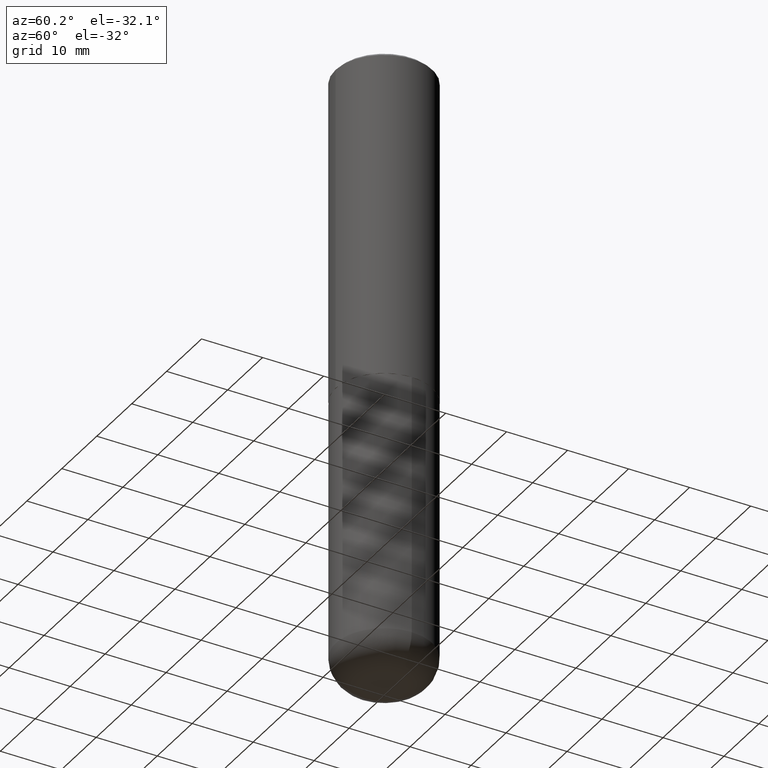
[diagram: clean part render]
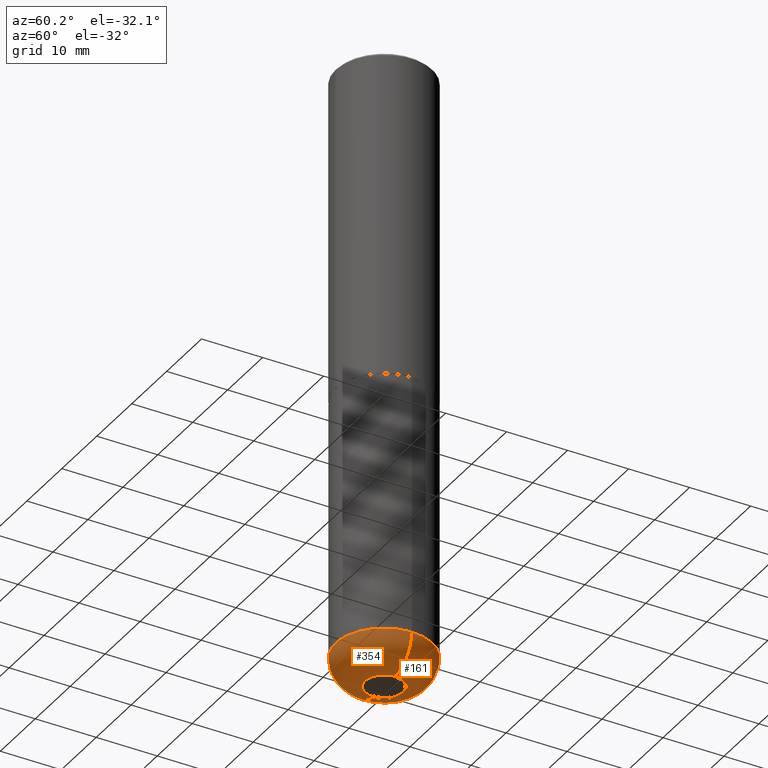
[diagram: same view with one multi-face feature highlighted, each face labeled with its STEP entity id]
A machine part, auxiliary view. The highlighted faces form ONE feature: a constant-radius fillet chain: 2 tangent blend faces with common blend radius 4.826 mm. The faces share edges in the B-rep.
Their STEP definitions:
[1] entity #161 (Torus):
#21 = CARTESIAN_POINT ( 'NONE',  ( -0.1225000000000000255, -1.243212904968626105E-14, -3.810000000000000053 ) ) ;
#22 = CARTESIAN_POINT ( 'NONE',  ( 0.1225000000000000394, -1.482133828338914748E-14, -3.999999999999999556 ) ) ;
#42 = CARTESIAN_POINT ( 'NONE',  ( -0.1225000000000000394, -1.208880417790426594E-14, -3.999999999999999556 ) ) ;
#43 = VERTEX_POINT ( 'NONE', #110 ) ;
#54 = DIRECTION ( 'NONE',  ( 1.000000000000000000, -6.982962677686263555E-15, 0.000000000000000000 ) ) ;
#62 = AXIS2_PLACEMENT_3D ( 'NONE', #109, #76, #270 ) ;
#64 = EDGE_CURVE ( 'NONE', #192, #304, #165, .T. ) ;
#71 = CARTESIAN_POINT ( 'NONE',  ( 9.317236151565370389E-29, -1.330254390099238573E-14, -3.810000000000000053 ) ) ;
#76 = DIRECTION ( 'NONE',  ( -2.445468806185136597E-29, 3.491481338843145583E-15, 1.000000000000000000 ) ) ;
#88 = EDGE_CURVE ( 'NONE', #43, #304, #294, .T. ) ;
#93 = AXIS2_PLACEMENT_3D ( 'NONE', #71, #334, #310 ) ;
#109 = CARTESIAN_POINT ( 'NONE',  ( 9.317236151565370389E-29, -1.330254390099238573E-14, -3.810000000000000053 ) ) ;
#110 = CARTESIAN_POINT ( 'NONE',  ( 0.3124999999999998890, -1.548471973776934408E-14, -3.810000000000000053 ) ) ;
#127 = AXIS2_PLACEMENT_3D ( 'NONE', #403, #376, #344 ) ;
#128 = ORIENTED_EDGE ( 'NONE', *, *, #64, .T. ) ;
#159 = CIRCLE ( 'NONE', #127, 0.1899999999999997247 ) ;
#161 = ADVANCED_FACE ( 'NONE', ( #200 ), #372, .T. ) ;
#165 = CIRCLE ( 'NONE', #247, 0.1899999999999997247 ) ;
#192 = VERTEX_POINT ( 'NONE', #42 ) ;
#194 = ORIENTED_EDGE ( 'NONE', *, *, #383, .F. ) ;
#200 = FACE_OUTER_BOUND ( 'NONE', #388, .T. ) ;
#225 = DIRECTION ( 'NONE',  ( -2.445468806185136597E-29, 3.491481338843145583E-15, 1.000000000000000000 ) ) ;
#235 = EDGE_CURVE ( 'NONE', #252, #192, #362, .T. ) ;
#247 = AXIS2_PLACEMENT_3D ( 'NONE', #21, #381, #385 ) ;
#252 = VERTEX_POINT ( 'NONE', #22 ) ;
#260 = ORIENTED_EDGE ( 'NONE', *, *, #235, .T. ) ;
#266 = AXIS2_PLACEMENT_3D ( 'NONE', #343, #225, #54 ) ;
#270 = DIRECTION ( 'NONE',  ( 1.000000000000000000, -6.982962677686269077E-15, 0.000000000000000000 ) ) ;
#294 = CIRCLE ( 'NONE', #62, 0.3125000000000000000 ) ;
#304 = VERTEX_POINT ( 'NONE', #375 ) ;
#310 = DIRECTION ( 'NONE',  ( 1.000000000000000000, -6.982962677686269077E-15, 4.883557194083113462E-29 ) ) ;
#334 = DIRECTION ( 'NONE',  ( -2.445468806185136597E-29, 3.491481338843145583E-15, 1.000000000000000000 ) ) ;
#343 = CARTESIAN_POINT ( 'NONE',  ( 9.781875224740545266E-29, -1.396592535537258075E-14, -3.999999999999999556 ) ) ;
#344 = DIRECTION ( 'NONE',  ( 1.000000000000000000, -6.982962677686261189E-15, 0.000000000000000000 ) ) ;
#362 = CIRCLE ( 'NONE', #266, 0.1225000000000000394 ) ;
#372 = TOROIDAL_SURFACE ( 'NONE', #93, 0.1225000000000000255, 0.1899999999999996692 ) ;
#375 = CARTESIAN_POINT ( 'NONE',  ( -0.3124999999999998890, -1.108209785174207265E-14, -3.810000000000000053 ) ) ;
#376 = DIRECTION ( 'NONE',  ( -6.982962677686266711E-15, -1.000000000000000000, 3.491481338843145583E-15 ) ) ;
#381 = DIRECTION ( 'NONE',  ( 7.105427357601001859E-15, 1.000000000000000000, -3.491481338843145583E-15 ) ) ;
#383 = EDGE_CURVE ( 'NONE', #252, #43, #159, .T. ) ;
#385 = DIRECTION ( 'NONE',  ( -1.000000000000000000, 7.105427357600997914E-15, 0.000000000000000000 ) ) ;
#388 = EDGE_LOOP ( 'NONE', ( #260, #128, #401, #194 ) ) ;
#401 = ORIENTED_EDGE ( 'NONE', *, *, #88, .F. ) ;
#403 = CARTESIAN_POINT ( 'NONE',  ( 0.1225000000000000255, -1.415795682900895246E-14, -3.810000000000000053 ) ) ;
[2] entity #354 (Torus):
#21 = CARTESIAN_POINT ( 'NONE',  ( -0.1225000000000000255, -1.243212904968626105E-14, -3.810000000000000053 ) ) ;
#22 = CARTESIAN_POINT ( 'NONE',  ( 0.1225000000000000394, -1.482133828338914748E-14, -3.999999999999999556 ) ) ;
#26 = DIRECTION ( 'NONE',  ( 1.000000000000000000, -6.982962677686263555E-15, 0.000000000000000000 ) ) ;
#42 = CARTESIAN_POINT ( 'NONE',  ( -0.1225000000000000394, -1.208880417790426594E-14, -3.999999999999999556 ) ) ;
#43 = VERTEX_POINT ( 'NONE', #110 ) ;
#64 = EDGE_CURVE ( 'NONE', #192, #304, #165, .T. ) ;
#75 = ORIENTED_EDGE ( 'NONE', *, *, #64, .F. ) ;
#80 = AXIS2_PLACEMENT_3D ( 'NONE', #217, #417, #329 ) ;
#91 = DIRECTION ( 'NONE',  ( 1.000000000000000000, -6.982962677686269077E-15, 4.883557194083113462E-29 ) ) ;
#108 = ORIENTED_EDGE ( 'NONE', *, *, #412, .F. ) ;
#110 = CARTESIAN_POINT ( 'NONE',  ( 0.3124999999999998890, -1.548471973776934408E-14, -3.810000000000000053 ) ) ;
#127 = AXIS2_PLACEMENT_3D ( 'NONE', #403, #376, #344 ) ;
#155 = FACE_OUTER_BOUND ( 'NONE', #179, .T. ) ;
#158 = DIRECTION ( 'NONE',  ( -2.445468806185136597E-29, 3.491481338843145583E-15, 1.000000000000000000 ) ) ;
#159 = CIRCLE ( 'NONE', #127, 0.1899999999999997247 ) ;
#165 = CIRCLE ( 'NONE', #247, 0.1899999999999997247 ) ;
#179 = EDGE_LOOP ( 'NONE', ( #75, #324, #206, #108 ) ) ;
#185 = DIRECTION ( 'NONE',  ( -2.445468806185136597E-29, 3.491481338843145583E-15, 1.000000000000000000 ) ) ;
#192 = VERTEX_POINT ( 'NONE', #42 ) ;
#196 = CIRCLE ( 'NONE', #357, 0.1225000000000000394 ) ;
#197 = CIRCLE ( 'NONE', #80, 0.3125000000000000000 ) ;
#206 = ORIENTED_EDGE ( 'NONE', *, *, #383, .T. ) ;
#217 = CARTESIAN_POINT ( 'NONE',  ( 9.317236151565370389E-29, -1.330254390099238573E-14, -3.810000000000000053 ) ) ;
#220 = TOROIDAL_SURFACE ( 'NONE', #240, 0.1225000000000000255, 0.1899999999999996692 ) ;
#240 = AXIS2_PLACEMENT_3D ( 'NONE', #347, #158, #91 ) ;
#247 = AXIS2_PLACEMENT_3D ( 'NONE', #21, #381, #385 ) ;
#252 = VERTEX_POINT ( 'NONE', #22 ) ;
#253 = CARTESIAN_POINT ( 'NONE',  ( 9.781875224740545266E-29, -1.396592535537258075E-14, -3.999999999999999556 ) ) ;
#304 = VERTEX_POINT ( 'NONE', #375 ) ;
#312 = EDGE_CURVE ( 'NONE', #192, #252, #196, .T. ) ;
#324 = ORIENTED_EDGE ( 'NONE', *, *, #312, .T. ) ;
#329 = DIRECTION ( 'NONE',  ( 1.000000000000000000, -6.982962677686269077E-15, 0.000000000000000000 ) ) ;
#344 = DIRECTION ( 'NONE',  ( 1.000000000000000000, -6.982962677686261189E-15, 0.000000000000000000 ) ) ;
#347 = CARTESIAN_POINT ( 'NONE',  ( 9.317236151565370389E-29, -1.330254390099238573E-14, -3.810000000000000053 ) ) ;
#354 = ADVANCED_FACE ( 'NONE', ( #155 ), #220, .T. ) ;
#357 = AXIS2_PLACEMENT_3D ( 'NONE', #253, #185, #26 ) ;
#375 = CARTESIAN_POINT ( 'NONE',  ( -0.3124999999999998890, -1.108209785174207265E-14, -3.810000000000000053 ) ) ;
#376 = DIRECTION ( 'NONE',  ( -6.982962677686266711E-15, -1.000000000000000000, 3.491481338843145583E-15 ) ) ;
#381 = DIRECTION ( 'NONE',  ( 7.105427357601001859E-15, 1.000000000000000000, -3.491481338843145583E-15 ) ) ;
#383 = EDGE_CURVE ( 'NONE', #252, #43, #159, .T. ) ;
#385 = DIRECTION ( 'NONE',  ( -1.000000000000000000, 7.105427357600997914E-15, 0.000000000000000000 ) ) ;
#403 = CARTESIAN_POINT ( 'NONE',  ( 0.1225000000000000255, -1.415795682900895246E-14, -3.810000000000000053 ) ) ;
#412 = EDGE_CURVE ( 'NONE', #304, #43, #197, .T. ) ;
#417 = DIRECTION ( 'NONE',  ( -2.445468806185136597E-29, 3.491481338843145583E-15, 1.000000000000000000 ) ) ;